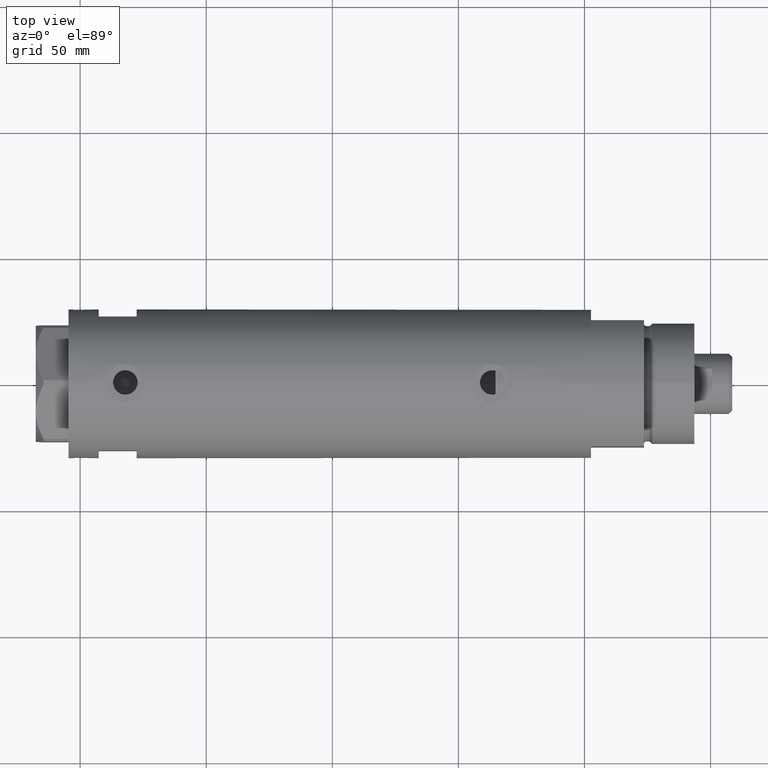
[diagram: clean part render]
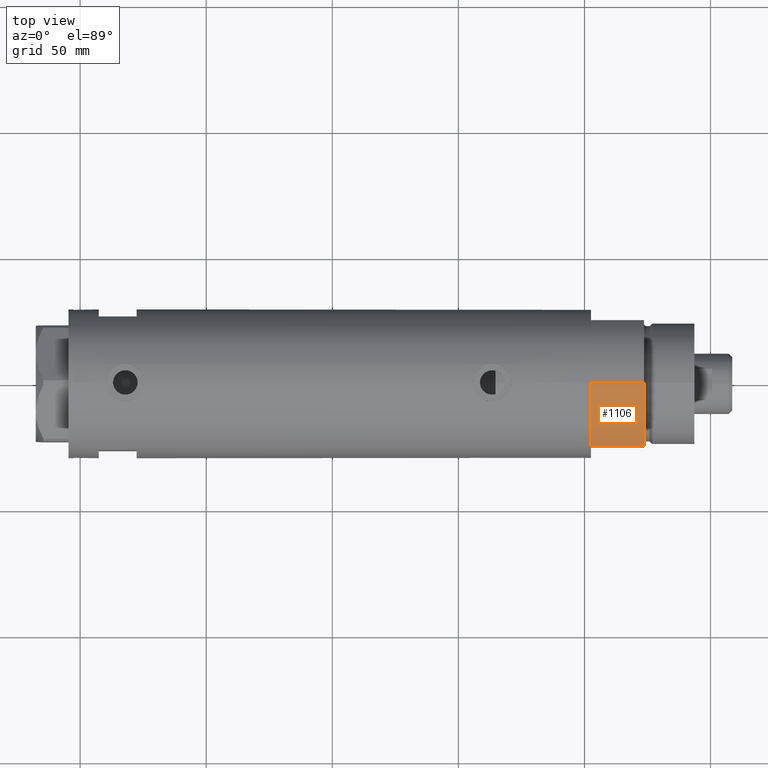
[diagram: same view with one face highlighted and labeled with its STEP entity id]
A machine part, top view. The second image highlights one B-rep face of the part: STEP entity #1106.
In plain terms, the highlighted cylindrical surface (partial cylindrical patch) has radius 29.5 mm, axis along (-1, -0, 0).
Its self-contained STEP definition (entity closure, byte-faithful):
#157 = CARTESIAN_POINT ( 'NONE',  ( -29.50000000000000355, 0.000000000000000000, 0.000000000000000000 ) ) ;
#162 = EDGE_CURVE ( 'NONE', #2538, #1913, #3122, .T. ) ;
#245 = DIRECTION ( 'NONE',  ( -0.000000000000000000, -0.000000000000000000, -1.000000000000000000 ) ) ;
#275 = DIRECTION ( 'NONE',  ( 1.000000000000000000, 0.000000000000000000, 0.000000000000000000 ) ) ;
#519 = EDGE_CURVE ( 'NONE', #2330, #1515, #3983, .T. ) ;
#589 = EDGE_LOOP ( 'NONE', ( #4150, #3013, #2037, #2938 ) ) ;
#874 = CARTESIAN_POINT ( 'NONE',  ( -29.50000000000000355, 0.000000000000000000, 21.00000000000000000 ) ) ;
#948 = CARTESIAN_POINT ( 'NONE',  ( 0.000000000000000000, 0.000000000000000000, 21.00000000000000000 ) ) ;
#1036 = DIRECTION ( 'NONE',  ( 0.000000000000000000, 0.000000000000000000, 1.000000000000000000 ) ) ;
#1089 = CARTESIAN_POINT ( 'NONE',  ( -15.66045976336582690, -25.00000000000000000, 0.000000000000000000 ) ) ;
#1106 = ADVANCED_FACE ( 'NONE', ( #3025 ), #4407, .T. ) ;
#1160 = EDGE_CURVE ( 'NONE', #2330, #1913, #2494, .T. ) ;
#1400 = VECTOR ( 'NONE', #1541, 1000.000000000000000 ) ;
#1408 = CARTESIAN_POINT ( 'NONE',  ( -15.66045976336583401, -25.00000000000000000, 0.000000000000000000 ) ) ;
#1515 = VERTEX_POINT ( 'NONE', #157 ) ;
#1541 = DIRECTION ( 'NONE',  ( -0.000000000000000000, -0.000000000000000000, 1.000000000000000000 ) ) ;
#1563 = CARTESIAN_POINT ( 'NONE',  ( 0.000000000000000000, 0.000000000000000000, 21.00000000000000000 ) ) ;
#1913 = VERTEX_POINT ( 'NONE', #4000 ) ;
#1968 = CARTESIAN_POINT ( 'NONE',  ( -29.50000000000000355, 0.000000000000000000, 21.00000000000000000 ) ) ;
#1994 = CIRCLE ( 'NONE', #3593, 29.50000000000000355 ) ;
#2037 = ORIENTED_EDGE ( 'NONE', *, *, #4005, .T. ) ;
#2330 = VERTEX_POINT ( 'NONE', #1968 ) ;
#2494 = CIRCLE ( 'NONE', #3944, 29.50000000000000355 ) ;
#2538 = VERTEX_POINT ( 'NONE', #1089 ) ;
#2911 = VECTOR ( 'NONE', #4337, 1000.000000000000000 ) ;
#2938 = ORIENTED_EDGE ( 'NONE', *, *, #162, .T. ) ;
#3013 = ORIENTED_EDGE ( 'NONE', *, *, #519, .T. ) ;
#3025 = FACE_OUTER_BOUND ( 'NONE', #589, .T. ) ;
#3122 = LINE ( 'NONE', #1408, #1400 ) ;
#3593 = AXIS2_PLACEMENT_3D ( 'NONE', #3738, #1036, #275 ) ;
#3642 = DIRECTION ( 'NONE',  ( 0.000000000000000000, 0.000000000000000000, 1.000000000000000000 ) ) ;
#3738 = CARTESIAN_POINT ( 'NONE',  ( 0.000000000000000000, 0.000000000000000000, 0.000000000000000000 ) ) ;
#3944 = AXIS2_PLACEMENT_3D ( 'NONE', #1563, #3642, #4322 ) ;
#3983 = LINE ( 'NONE', #874, #2911 ) ;
#4000 = CARTESIAN_POINT ( 'NONE',  ( -15.66045976336583045, -24.99999999999999645, 20.99999999999999645 ) ) ;
#4005 = EDGE_CURVE ( 'NONE', #1515, #2538, #1994, .T. ) ;
#4009 = DIRECTION ( 'NONE',  ( -1.000000000000000000, 0.000000000000000000, 0.000000000000000000 ) ) ;
#4150 = ORIENTED_EDGE ( 'NONE', *, *, #1160, .F. ) ;
#4322 = DIRECTION ( 'NONE',  ( 1.000000000000000000, 0.000000000000000000, 0.000000000000000000 ) ) ;
#4337 = DIRECTION ( 'NONE',  ( -0.000000000000000000, -0.000000000000000000, -1.000000000000000000 ) ) ;
#4407 = CYLINDRICAL_SURFACE ( 'NONE', #4451, 29.50000000000000355 ) ;
#4451 = AXIS2_PLACEMENT_3D ( 'NONE', #948, #245, #4009 ) ;